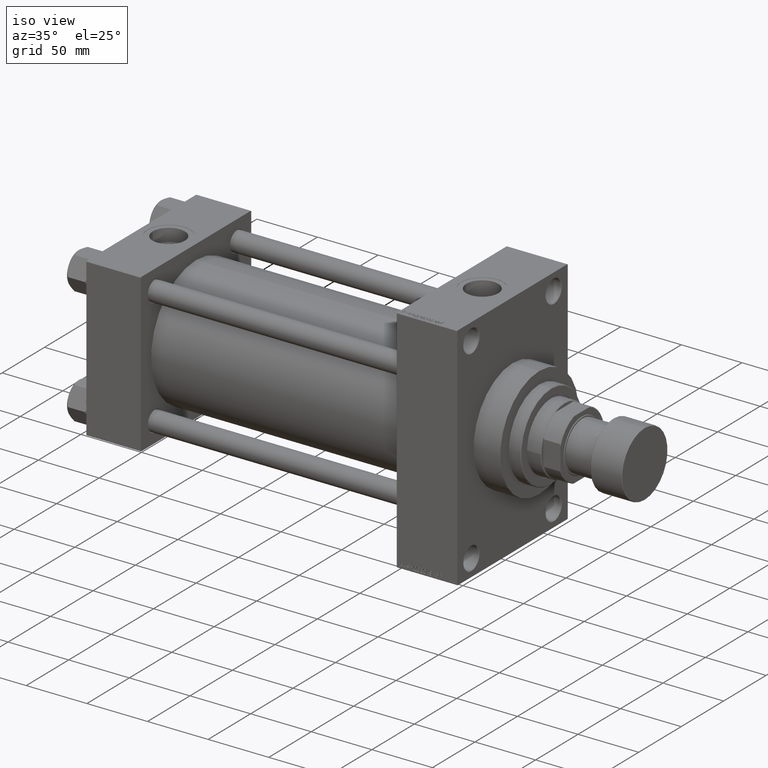
[diagram: clean part render]
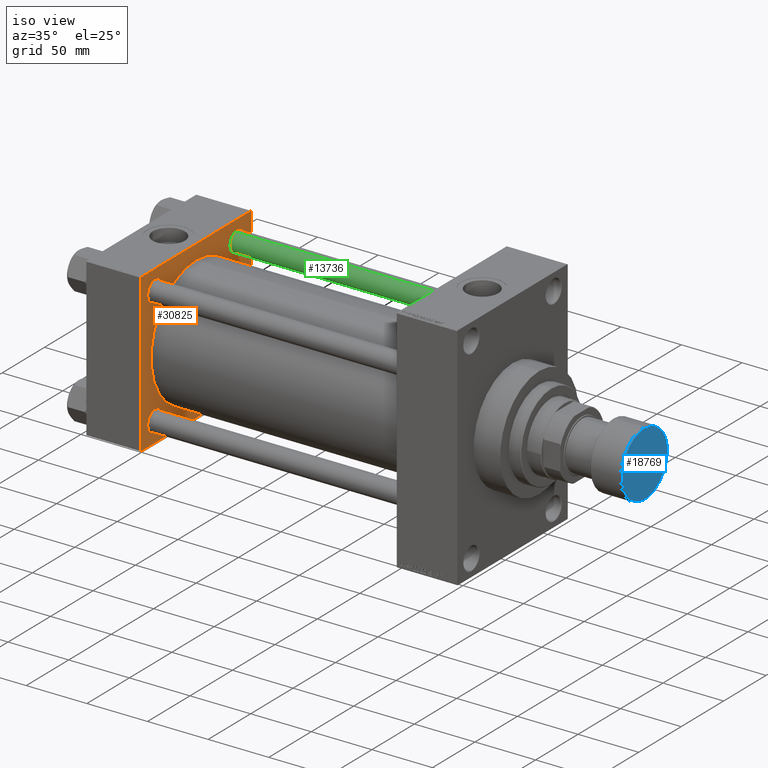
[diagram: same view with three faces highlighted in distinct colors, each labeled with its STEP entity id]
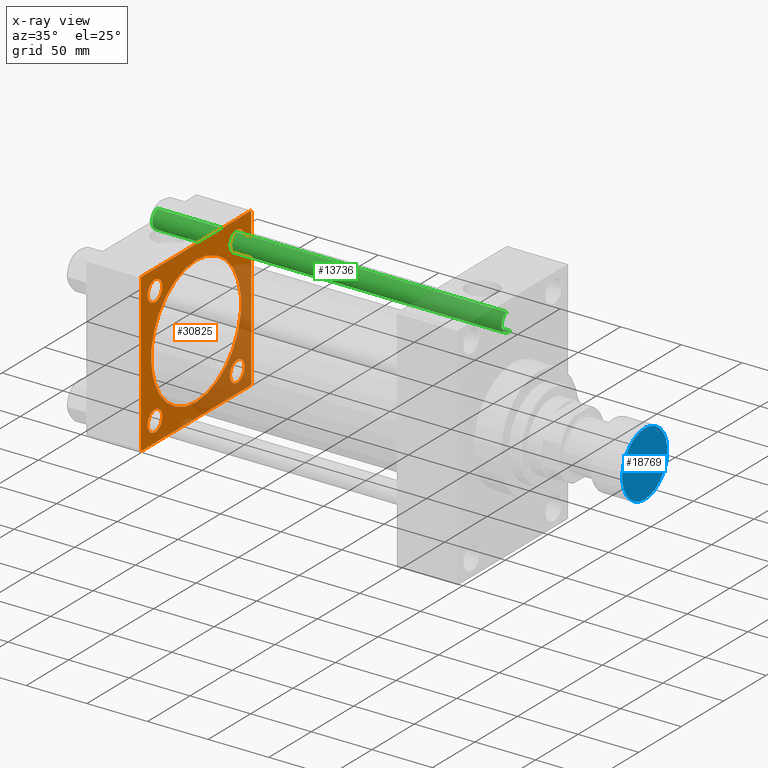
[diagram: x-ray of the same camera — body ghosted, the three highlighted faces saturated]
A machine part, iso view with three faces highlighted in distinct colors.
The next image is the same camera in x-ray (body ghosted, the three faces saturated) — at least one of them is partly hidden behind the body in this view.
Their STEP definitions:

[orange] entity #30825 — the highlighted planar face has unit normal (-1, 0, 0).
#60 = CIRCLE ( 'NONE', #18774, 8.499999999999952038 ) ;
#1129 = LINE ( 'NONE', #32926, #28834 ) ;
#1233 = DIRECTION ( 'NONE',  ( 0.000000000000000000, 0.000000000000000000, -1.000000000000000000 ) ) ;
#2003 = ORIENTED_EDGE ( 'NONE', *, *, #30261, .T. ) ;
#2062 = CARTESIAN_POINT ( 'NONE',  ( 45.00000000000000000, 64.49999999999997158, 65.00000000000001421 ) ) ;
#2191 = CARTESIAN_POINT ( 'NONE',  ( 45.00000000000000000, -48.44999999999999574, 39.95000000000007390 ) ) ;
#2196 = VERTEX_POINT ( 'NONE', #43667 ) ;
#2264 = DIRECTION ( 'NONE',  ( 0.000000000000000000, 0.000000000000000000, 1.000000000000000000 ) ) ;
#2521 = DIRECTION ( 'NONE',  ( -1.000000000000000000, 0.000000000000000000, -0.000000000000000000 ) ) ;
#2667 = LINE ( 'NONE', #25831, #17743 ) ;
#3241 = EDGE_CURVE ( 'NONE', #35144, #18084, #44678, .T. ) ;
#3462 = CARTESIAN_POINT ( 'NONE',  ( 45.00000000000000000, 48.45000000000000995, -48.45000000000001705 ) ) ;
#4061 = AXIS2_PLACEMENT_3D ( 'NONE', #17865, #36455, #37200 ) ;
#4627 = ORIENTED_EDGE ( 'NONE', *, *, #7692, .F. ) ;
#5097 = CARTESIAN_POINT ( 'NONE',  ( 45.00000000000000000, -64.49999999999997158, 65.00000000000000000 ) ) ;
#5725 = DIRECTION ( 'NONE',  ( 0.000000000000000000, -1.000000000000000000, -1.067522139062650425E-16 ) ) ;
#5997 = ORIENTED_EDGE ( 'NONE', *, *, #48949, .T. ) ;
#6641 = VERTEX_POINT ( 'NONE', #31569 ) ;
#7634 = CARTESIAN_POINT ( 'NONE',  ( 45.00000000000000000, -48.44999999999999574, -48.45000000000003126 ) ) ;
#7692 = EDGE_CURVE ( 'NONE', #15186, #44545, #39144, .T. ) ;
#8746 = CARTESIAN_POINT ( 'NONE',  ( 45.00000000000000000, -65.00000000000000000, 64.50000000000000000 ) ) ;
#9212 = CARTESIAN_POINT ( 'NONE',  ( 45.00000000000000000, 0.000000000000000000, 0.000000000000000000 ) ) ;
#9838 = DIRECTION ( 'NONE',  ( 0.000000000000000000, 0.000000000000000000, 1.000000000000000000 ) ) ;
#10500 = ORIENTED_EDGE ( 'NONE', *, *, #28917, .T. ) ;
#10529 = CARTESIAN_POINT ( 'NONE',  ( 45.00000000000000000, 48.45000000000000995, -39.95000000000005969 ) ) ;
#10799 = AXIS2_PLACEMENT_3D ( 'NONE', #36201, #44338, #13548 ) ;
#10847 = CARTESIAN_POINT ( 'NONE',  ( 45.00000000000000000, 48.45000000000000995, -56.94999999999996732 ) ) ;
#11238 = VECTOR ( 'NONE', #1233, 1000.000000000000000 ) ;
#11829 = CIRCLE ( 'NONE', #22381, 8.499999999999952038 ) ;
#11965 = ORIENTED_EDGE ( 'NONE', *, *, #17966, .F. ) ;
#12566 = ORIENTED_EDGE ( 'NONE', *, *, #29371, .T. ) ;
#12572 = ORIENTED_EDGE ( 'NONE', *, *, #40581, .T. ) ;
#12626 = CARTESIAN_POINT ( 'NONE',  ( 45.00000000000000000, 65.00000000000000000, -64.99999999999998579 ) ) ;
#13033 = FACE_BOUND ( 'NONE', #22099, .T. ) ;
#13548 = DIRECTION ( 'NONE',  ( 0.000000000000000000, 0.000000000000000000, 1.000000000000000000 ) ) ;
#14133 = VECTOR ( 'NONE', #35464, 1000.000000000000000 ) ;
#14530 = DIRECTION ( 'NONE',  ( -1.000000000000000000, 0.000000000000000000, -0.000000000000000000 ) ) ;
#14645 = AXIS2_PLACEMENT_3D ( 'NONE', #33471, #24390, #21771 ) ;
#14733 = ORIENTED_EDGE ( 'NONE', *, *, #33601, .F. ) ;
#15149 = CARTESIAN_POINT ( 'NONE',  ( 44.99999999999998579, -2.602085213965210642E-15, 0.000000000000000000 ) ) ;
#15186 = VERTEX_POINT ( 'NONE', #43898 ) ;
#15587 = VECTOR ( 'NONE', #44990, 1000.000000000000000 ) ;
#15773 = ORIENTED_EDGE ( 'NONE', *, *, #32055, .F. ) ;
#15841 = DIRECTION ( 'NONE',  ( -0.000000000000000000, 0.000000000000000000, 1.000000000000000000 ) ) ;
#16343 = FACE_BOUND ( 'NONE', #40815, .T. ) ;
#16428 = AXIS2_PLACEMENT_3D ( 'NONE', #15149, #31655, #22767 ) ;
#16649 = LINE ( 'NONE', #8746, #14133 ) ;
#16774 = CARTESIAN_POINT ( 'NONE',  ( 45.00000000000000000, -65.00000000000000000, 65.00000000000000000 ) ) ;
#16795 = EDGE_CURVE ( 'NONE', #35034, #27676, #49933, .T. ) ;
#17743 = VECTOR ( 'NONE', #21763, 1000.000000000000000 ) ;
#17865 = CARTESIAN_POINT ( 'NONE',  ( 45.00000000000000000, 48.45000000000000995, 48.45000000000001705 ) ) ;
#17966 = EDGE_CURVE ( 'NONE', #36013, #2196, #1129, .T. ) ;
#18084 = VERTEX_POINT ( 'NONE', #10529 ) ;
#18123 = CIRCLE ( 'NONE', #10799, 8.499999999999952038 ) ;
#18472 = CARTESIAN_POINT ( 'NONE',  ( 45.00000000000000000, -48.44999999999999574, 48.45000000000003126 ) ) ;
#18566 = VECTOR ( 'NONE', #47249, 1000.000000000000114 ) ;
#18774 = AXIS2_PLACEMENT_3D ( 'NONE', #18472, #48520, #9838 ) ;
#19829 = ORIENTED_EDGE ( 'NONE', *, *, #49617, .T. ) ;
#19838 = ORIENTED_EDGE ( 'NONE', *, *, #48265, .T. ) ;
#19939 = CARTESIAN_POINT ( 'NONE',  ( 45.00000000000000000, 48.45000000000000995, 39.95000000000005969 ) ) ;
#19946 = ORIENTED_EDGE ( 'NONE', *, *, #3241, .T. ) ;
#21580 = CARTESIAN_POINT ( 'NONE',  ( 45.00000000000000000, 65.00000000000000000, 65.00000000000001421 ) ) ;
#21763 = DIRECTION ( 'NONE',  ( 0.000000000000000000, 0.7071067811865279218, -0.7071067811865671127 ) ) ;
#21771 = DIRECTION ( 'NONE',  ( 0.000000000000000000, 0.000000000000000000, 1.000000000000000000 ) ) ;
#21868 = CARTESIAN_POINT ( 'NONE',  ( 45.00000000000000000, -48.44999999999999574, 48.45000000000003126 ) ) ;
#21931 = CARTESIAN_POINT ( 'NONE',  ( 45.00000000000000000, 48.45000000000000995, 56.94999999999996732 ) ) ;
#22099 = EDGE_LOOP ( 'NONE', ( #23594, #50342 ) ) ;
#22193 = DIRECTION ( 'NONE',  ( -1.000000000000000000, 0.000000000000000000, -0.000000000000000000 ) ) ;
#22300 = CARTESIAN_POINT ( 'NONE',  ( 45.00000000000000000, 65.00000000000000000, 64.49999999999998579 ) ) ;
#22381 = AXIS2_PLACEMENT_3D ( 'NONE', #3462, #50045, #27129 ) ;
#22767 = DIRECTION ( 'NONE',  ( 0.000000000000000000, 0.000000000000000000, 1.000000000000000000 ) ) ;
#22771 = EDGE_LOOP ( 'NONE', ( #19838, #25488 ) ) ;
#23324 = CARTESIAN_POINT ( 'NONE',  ( 45.00000000000000000, -65.00000000000000000, 64.50000000000000000 ) ) ;
#23594 = ORIENTED_EDGE ( 'NONE', *, *, #16795, .T. ) ;
#23961 = FACE_OUTER_BOUND ( 'NONE', #42741, .T. ) ;
#24164 = VERTEX_POINT ( 'NONE', #36246 ) ;
#24294 = VERTEX_POINT ( 'NONE', #42053 ) ;
#24390 = DIRECTION ( 'NONE',  ( -1.000000000000000000, 0.000000000000000000, -0.000000000000000000 ) ) ;
#24423 = CARTESIAN_POINT ( 'NONE',  ( 44.99999999999998579, -2.602085213965210642E-15, 0.000000000000000000 ) ) ;
#24723 = DIRECTION ( 'NONE',  ( -1.000000000000000000, 0.000000000000000000, -0.000000000000000000 ) ) ;
#25032 = CIRCLE ( 'NONE', #38942, 53.00000000000000711 ) ;
#25480 = DIRECTION ( 'NONE',  ( 0.000000000000000000, -0.7071067811865474617, 0.7071067811865474617 ) ) ;
#25488 = ORIENTED_EDGE ( 'NONE', *, *, #26532, .T. ) ;
#25592 = VERTEX_POINT ( 'NONE', #23324 ) ;
#25831 = CARTESIAN_POINT ( 'NONE',  ( 45.00000000000000000, -64.49999999999994316, -65.00000000000000000 ) ) ;
#26008 = CIRCLE ( 'NONE', #4061, 8.499999999999952038 ) ;
#26434 = EDGE_CURVE ( 'NONE', #36013, #24164, #37427, .T. ) ;
#26532 = EDGE_CURVE ( 'NONE', #49927, #24294, #44442, .T. ) ;
#26969 = ORIENTED_EDGE ( 'NONE', *, *, #26434, .T. ) ;
#27074 = CARTESIAN_POINT ( 'NONE',  ( 45.00000000000000000, -65.00000000000000000, -64.49999999999991473 ) ) ;
#27129 = DIRECTION ( 'NONE',  ( 0.000000000000000000, 0.000000000000000000, 1.000000000000000000 ) ) ;
#27497 = CARTESIAN_POINT ( 'NONE',  ( 44.99999999999998579, 3.888542821515762466E-15, -53.00000000000000711 ) ) ;
#27676 = VERTEX_POINT ( 'NONE', #33876 ) ;
#27972 = LINE ( 'NONE', #16774, #11238 ) ;
#28351 = AXIS2_PLACEMENT_3D ( 'NONE', #9212, #24723, #15841 ) ;
#28418 = LINE ( 'NONE', #39610, #18566 ) ;
#28540 = FACE_BOUND ( 'NONE', #36744, .T. ) ;
#28834 = VECTOR ( 'NONE', #40318, 1000.000000000000000 ) ;
#28917 = EDGE_CURVE ( 'NONE', #25592, #40956, #27972, .T. ) ;
#29257 = DIRECTION ( 'NONE',  ( 0.000000000000000000, 0.000000000000000000, 1.000000000000000000 ) ) ;
#29371 = EDGE_CURVE ( 'NONE', #40956, #39006, #2667, .T. ) ;
#30261 = EDGE_CURVE ( 'NONE', #6641, #2196, #28418, .T. ) ;
#30825 = ADVANCED_FACE ( 'NONE', ( #36175, #16343, #13033, #28540, #43301, #23961 ), #44070, .F. ) ;
#31569 = CARTESIAN_POINT ( 'NONE',  ( 45.00000000000000000, 64.49999999999997158, -64.99999999999998579 ) ) ;
#31655 = DIRECTION ( 'NONE',  ( 1.000000000000000000, -0.000000000000000000, 0.000000000000000000 ) ) ;
#32055 = EDGE_CURVE ( 'NONE', #44545, #15186, #25032, .T. ) ;
#32110 = VERTEX_POINT ( 'NONE', #5097 ) ;
#32926 = CARTESIAN_POINT ( 'NONE',  ( 45.00000000000000000, 65.00000000000000000, 65.00000000000001421 ) ) ;
#33062 = VECTOR ( 'NONE', #25480, 1000.000000000000114 ) ;
#33471 = CARTESIAN_POINT ( 'NONE',  ( 45.00000000000000000, 48.45000000000000995, -48.45000000000001705 ) ) ;
#33601 = EDGE_CURVE ( 'NONE', #6641, #39006, #43912, .T. ) ;
#33661 = AXIS2_PLACEMENT_3D ( 'NONE', #21868, #2521, #29257 ) ;
#33876 = CARTESIAN_POINT ( 'NONE',  ( 45.00000000000000000, -48.44999999999999574, 56.94999999999998153 ) ) ;
#34022 = LINE ( 'NONE', #21580, #15587 ) ;
#34956 = CARTESIAN_POINT ( 'NONE',  ( 45.00000000000000000, -48.44999999999999574, -39.95000000000007390 ) ) ;
#35034 = VERTEX_POINT ( 'NONE', #2191 ) ;
#35144 = VERTEX_POINT ( 'NONE', #10847 ) ;
#35464 = DIRECTION ( 'NONE',  ( -0.000000000000000000, -0.7071067811865672237, -0.7071067811865279218 ) ) ;
#36013 = VERTEX_POINT ( 'NONE', #22300 ) ;
#36175 = FACE_BOUND ( 'NONE', #22771, .T. ) ;
#36201 = CARTESIAN_POINT ( 'NONE',  ( 45.00000000000000000, 48.45000000000000995, 48.45000000000001705 ) ) ;
#36246 = CARTESIAN_POINT ( 'NONE',  ( 45.00000000000000000, 64.49999999999997158, 65.00000000000001421 ) ) ;
#36455 = DIRECTION ( 'NONE',  ( -1.000000000000000000, 0.000000000000000000, -0.000000000000000000 ) ) ;
#36744 = EDGE_LOOP ( 'NONE', ( #47940, #44242 ) ) ;
#37104 = AXIS2_PLACEMENT_3D ( 'NONE', #7634, #14530, #37931 ) ;
#37200 = DIRECTION ( 'NONE',  ( 0.000000000000000000, 0.000000000000000000, 1.000000000000000000 ) ) ;
#37287 = EDGE_CURVE ( 'NONE', #47517, #41150, #26008, .T. ) ;
#37427 = LINE ( 'NONE', #2062, #33062 ) ;
#37931 = DIRECTION ( 'NONE',  ( 0.000000000000000000, 0.000000000000000000, 1.000000000000000000 ) ) ;
#38942 = AXIS2_PLACEMENT_3D ( 'NONE', #24423, #44025, #2264 ) ;
#39006 = VERTEX_POINT ( 'NONE', #49145 ) ;
#39144 = CIRCLE ( 'NONE', #16428, 53.00000000000000711 ) ;
#39610 = CARTESIAN_POINT ( 'NONE',  ( 45.00000000000000000, 65.00000000000000000, -64.49999999999995737 ) ) ;
#39635 = EDGE_CURVE ( 'NONE', #27676, #35034, #60, .T. ) ;
#40318 = DIRECTION ( 'NONE',  ( 0.000000000000000000, 0.000000000000000000, -1.000000000000000000 ) ) ;
#40581 = EDGE_CURVE ( 'NONE', #24164, #32110, #34022, .T. ) ;
#40815 = EDGE_LOOP ( 'NONE', ( #19946, #19829 ) ) ;
#40956 = VERTEX_POINT ( 'NONE', #27074 ) ;
#41150 = VERTEX_POINT ( 'NONE', #19939 ) ;
#41527 = CARTESIAN_POINT ( 'NONE',  ( 45.00000000000000000, -48.44999999999999574, -48.45000000000003126 ) ) ;
#42053 = CARTESIAN_POINT ( 'NONE',  ( 45.00000000000000000, -48.44999999999999574, -56.94999999999998153 ) ) ;
#42272 = DIRECTION ( 'NONE',  ( 0.000000000000000000, 0.000000000000000000, 1.000000000000000000 ) ) ;
#42741 = EDGE_LOOP ( 'NONE', ( #14733, #2003, #11965, #26969, #12572, #5997, #10500, #12566 ) ) ;
#43301 = FACE_BOUND ( 'NONE', #45820, .T. ) ;
#43303 = EDGE_CURVE ( 'NONE', #41150, #47517, #18123, .T. ) ;
#43667 = CARTESIAN_POINT ( 'NONE',  ( 45.00000000000000000, 65.00000000000000000, -64.49999999999995737 ) ) ;
#43898 = CARTESIAN_POINT ( 'NONE',  ( 44.99999999999998579, -2.602085213965210642E-15, 53.00000000000000711 ) ) ;
#43912 = LINE ( 'NONE', #12626, #50237 ) ;
#44025 = DIRECTION ( 'NONE',  ( 1.000000000000000000, -0.000000000000000000, 0.000000000000000000 ) ) ;
#44070 = PLANE ( 'NONE',  #28351 ) ;
#44242 = ORIENTED_EDGE ( 'NONE', *, *, #37287, .T. ) ;
#44338 = DIRECTION ( 'NONE',  ( -1.000000000000000000, 0.000000000000000000, -0.000000000000000000 ) ) ;
#44442 = CIRCLE ( 'NONE', #37104, 8.499999999999952038 ) ;
#44545 = VERTEX_POINT ( 'NONE', #27497 ) ;
#44678 = CIRCLE ( 'NONE', #14645, 8.499999999999952038 ) ;
#44990 = DIRECTION ( 'NONE',  ( 0.000000000000000000, -1.000000000000000000, -1.067522139062650425E-16 ) ) ;
#45820 = EDGE_LOOP ( 'NONE', ( #4627, #15773 ) ) ;
#47249 = DIRECTION ( 'NONE',  ( -0.000000000000000000, 0.7071067811865474617, 0.7071067811865474617 ) ) ;
#47517 = VERTEX_POINT ( 'NONE', #21931 ) ;
#47940 = ORIENTED_EDGE ( 'NONE', *, *, #43303, .T. ) ;
#48250 = CIRCLE ( 'NONE', #49085, 8.499999999999952038 ) ;
#48265 = EDGE_CURVE ( 'NONE', #24294, #49927, #48250, .T. ) ;
#48520 = DIRECTION ( 'NONE',  ( -1.000000000000000000, 0.000000000000000000, -0.000000000000000000 ) ) ;
#48949 = EDGE_CURVE ( 'NONE', #32110, #25592, #16649, .T. ) ;
#49085 = AXIS2_PLACEMENT_3D ( 'NONE', #41527, #22193, #42272 ) ;
#49145 = CARTESIAN_POINT ( 'NONE',  ( 45.00000000000000000, -64.49999999999994316, -65.00000000000000000 ) ) ;
#49617 = EDGE_CURVE ( 'NONE', #18084, #35144, #11829, .T. ) ;
#49927 = VERTEX_POINT ( 'NONE', #34956 ) ;
#49933 = CIRCLE ( 'NONE', #33661, 8.499999999999952038 ) ;
#50045 = DIRECTION ( 'NONE',  ( -1.000000000000000000, 0.000000000000000000, -0.000000000000000000 ) ) ;
#50237 = VECTOR ( 'NONE', #5725, 1000.000000000000000 ) ;
#50342 = ORIENTED_EDGE ( 'NONE', *, *, #39635, .T. ) ;

[blue] entity #18769 — the highlighted planar face has unit normal (1, 0, 0).
#1045 = EDGE_LOOP ( 'NONE', ( #46380, #17070 ) ) ;
#5820 = CARTESIAN_POINT ( 'NONE',  ( 26.50000000000000000, 0.000000000000000000, 0.000000000000000000 ) ) ;
#7756 = AXIS2_PLACEMENT_3D ( 'NONE', #28687, #9095, #12416 ) ;
#9095 = DIRECTION ( 'NONE',  ( 0.000000000000000000, 0.000000000000000000, 1.000000000000000000 ) ) ;
#10594 = EDGE_CURVE ( 'NONE', #26669, #12884, #13265, .T. ) ;
#12416 = DIRECTION ( 'NONE',  ( 1.000000000000000000, 0.000000000000000000, -0.000000000000000000 ) ) ;
#12884 = VERTEX_POINT ( 'NONE', #23678 ) ;
#13265 = CIRCLE ( 'NONE', #34387, 26.50000000000000000 ) ;
#16990 = FACE_OUTER_BOUND ( 'NONE', #1045, .T. ) ;
#17070 = ORIENTED_EDGE ( 'NONE', *, *, #28120, .T. ) ;
#18769 = ADVANCED_FACE ( 'NONE', ( #16990 ), #35806, .T. ) ;
#19254 = DIRECTION ( 'NONE',  ( 0.000000000000000000, 0.000000000000000000, 1.000000000000000000 ) ) ;
#19727 = DIRECTION ( 'NONE',  ( 1.000000000000000000, 0.000000000000000000, 0.000000000000000000 ) ) ;
#23541 = CARTESIAN_POINT ( 'NONE',  ( 0.000000000000000000, 0.000000000000000000, 0.000000000000000000 ) ) ;
#23678 = CARTESIAN_POINT ( 'NONE',  ( -26.50000000000000000, 3.275930187719169552E-15, 0.000000000000000000 ) ) ;
#26669 = VERTEX_POINT ( 'NONE', #5820 ) ;
#27432 = AXIS2_PLACEMENT_3D ( 'NONE', #23541, #39067, #19727 ) ;
#28120 = EDGE_CURVE ( 'NONE', #12884, #26669, #42831, .T. ) ;
#28687 = CARTESIAN_POINT ( 'NONE',  ( 0.000000000000000000, 0.000000000000000000, 0.000000000000000000 ) ) ;
#34387 = AXIS2_PLACEMENT_3D ( 'NONE', #49807, #19254, #42660 ) ;
#35806 = PLANE ( 'NONE',  #7756 ) ;
#39067 = DIRECTION ( 'NONE',  ( 0.000000000000000000, 0.000000000000000000, 1.000000000000000000 ) ) ;
#42660 = DIRECTION ( 'NONE',  ( 1.000000000000000000, 0.000000000000000000, 0.000000000000000000 ) ) ;
#42831 = CIRCLE ( 'NONE', #27432, 26.50000000000000000 ) ;
#46380 = ORIENTED_EDGE ( 'NONE', *, *, #10594, .T. ) ;
#49807 = CARTESIAN_POINT ( 'NONE',  ( 0.000000000000000000, 0.000000000000000000, 0.000000000000000000 ) ) ;

[green] entity #13736 — the highlighted cylindrical surface (edge-blend (fillet) strip) has radius 8 mm, axis along (-1, -0, 0).
#549 = VERTEX_POINT ( 'NONE', #32725 ) ;
#1857 = DIRECTION ( 'NONE',  ( 1.000000000000000000, 0.000000000000000000, 0.000000000000000000 ) ) ;
#3353 = AXIS2_PLACEMENT_3D ( 'NONE', #5670, #28583, #1857 ) ;
#3906 = CARTESIAN_POINT ( 'NONE',  ( 0.000000000000000000, 0.000000000000000000, 289.0000000000000000 ) ) ;
#4425 = DIRECTION ( 'NONE',  ( -1.000000000000000000, 0.000000000000000000, 0.000000000000000000 ) ) ;
#5670 = CARTESIAN_POINT ( 'NONE',  ( 0.000000000000000000, 0.000000000000000000, 0.5000000000000004441 ) ) ;
#5942 = CARTESIAN_POINT ( 'NONE',  ( -8.000000000000000000, 0.000000000000000000, 289.0000000000000000 ) ) ;
#6394 = EDGE_CURVE ( 'NONE', #8233, #49530, #19599, .T. ) ;
#6552 = EDGE_CURVE ( 'NONE', #549, #49530, #15311, .T. ) ;
#7863 = EDGE_CURVE ( 'NONE', #34720, #8233, #33674, .T. ) ;
#7919 = CIRCLE ( 'NONE', #37167, 8.000000000000000000 ) ;
#8233 = VERTEX_POINT ( 'NONE', #29790 ) ;
#12143 = ORIENTED_EDGE ( 'NONE', *, *, #28225, .T. ) ;
#12378 = CARTESIAN_POINT ( 'NONE',  ( 8.000000000000000000, 9.797174393178825657E-16, 0.5000000000000004441 ) ) ;
#13736 = ADVANCED_FACE ( 'NONE', ( #27581 ), #30882, .T. ) ;
#15311 = LINE ( 'NONE', #46101, #15542 ) ;
#15542 = VECTOR ( 'NONE', #42276, 1000.000000000000000 ) ;
#19599 = CIRCLE ( 'NONE', #3353, 8.000000000000000000 ) ;
#20744 = DIRECTION ( 'NONE',  ( 1.000000000000000000, 0.000000000000000000, 0.000000000000000000 ) ) ;
#20983 = ORIENTED_EDGE ( 'NONE', *, *, #7863, .T. ) ;
#21418 = ORIENTED_EDGE ( 'NONE', *, *, #6552, .F. ) ;
#21461 = EDGE_LOOP ( 'NONE', ( #21418, #12143, #20983, #35416 ) ) ;
#25783 = DIRECTION ( 'NONE',  ( -0.000000000000000000, -0.000000000000000000, -1.000000000000000000 ) ) ;
#27581 = FACE_OUTER_BOUND ( 'NONE', #21461, .T. ) ;
#28225 = EDGE_CURVE ( 'NONE', #549, #34720, #7919, .T. ) ;
#28583 = DIRECTION ( 'NONE',  ( -0.000000000000000000, -0.000000000000000000, 1.000000000000000000 ) ) ;
#29790 = CARTESIAN_POINT ( 'NONE',  ( -8.000000000000000000, 0.000000000000000000, 0.5000000000000004441 ) ) ;
#30882 = CYLINDRICAL_SURFACE ( 'NONE', #40895, 8.000000000000000000 ) ;
#31450 = CARTESIAN_POINT ( 'NONE',  ( -8.000000000000000000, 0.000000000000000000, 288.5000000000000000 ) ) ;
#32185 = CARTESIAN_POINT ( 'NONE',  ( 0.000000000000000000, 0.000000000000000000, 288.5000000000000000 ) ) ;
#32725 = CARTESIAN_POINT ( 'NONE',  ( 8.000000000000000000, 9.797174393178825657E-16, 288.5000000000000000 ) ) ;
#33674 = LINE ( 'NONE', #5942, #37513 ) ;
#34720 = VERTEX_POINT ( 'NONE', #31450 ) ;
#35416 = ORIENTED_EDGE ( 'NONE', *, *, #6394, .T. ) ;
#37167 = AXIS2_PLACEMENT_3D ( 'NONE', #32185, #47972, #20744 ) ;
#37513 = VECTOR ( 'NONE', #25783, 1000.000000000000000 ) ;
#38271 = DIRECTION ( 'NONE',  ( -0.000000000000000000, -0.000000000000000000, -1.000000000000000000 ) ) ;
#40895 = AXIS2_PLACEMENT_3D ( 'NONE', #3906, #38271, #4425 ) ;
#42276 = DIRECTION ( 'NONE',  ( -0.000000000000000000, -0.000000000000000000, -1.000000000000000000 ) ) ;
#46101 = CARTESIAN_POINT ( 'NONE',  ( 8.000000000000000000, 9.797174393178825657E-16, 289.0000000000000000 ) ) ;
#47972 = DIRECTION ( 'NONE',  ( 0.000000000000000000, 0.000000000000000000, -1.000000000000000000 ) ) ;
#49530 = VERTEX_POINT ( 'NONE', #12378 ) ;